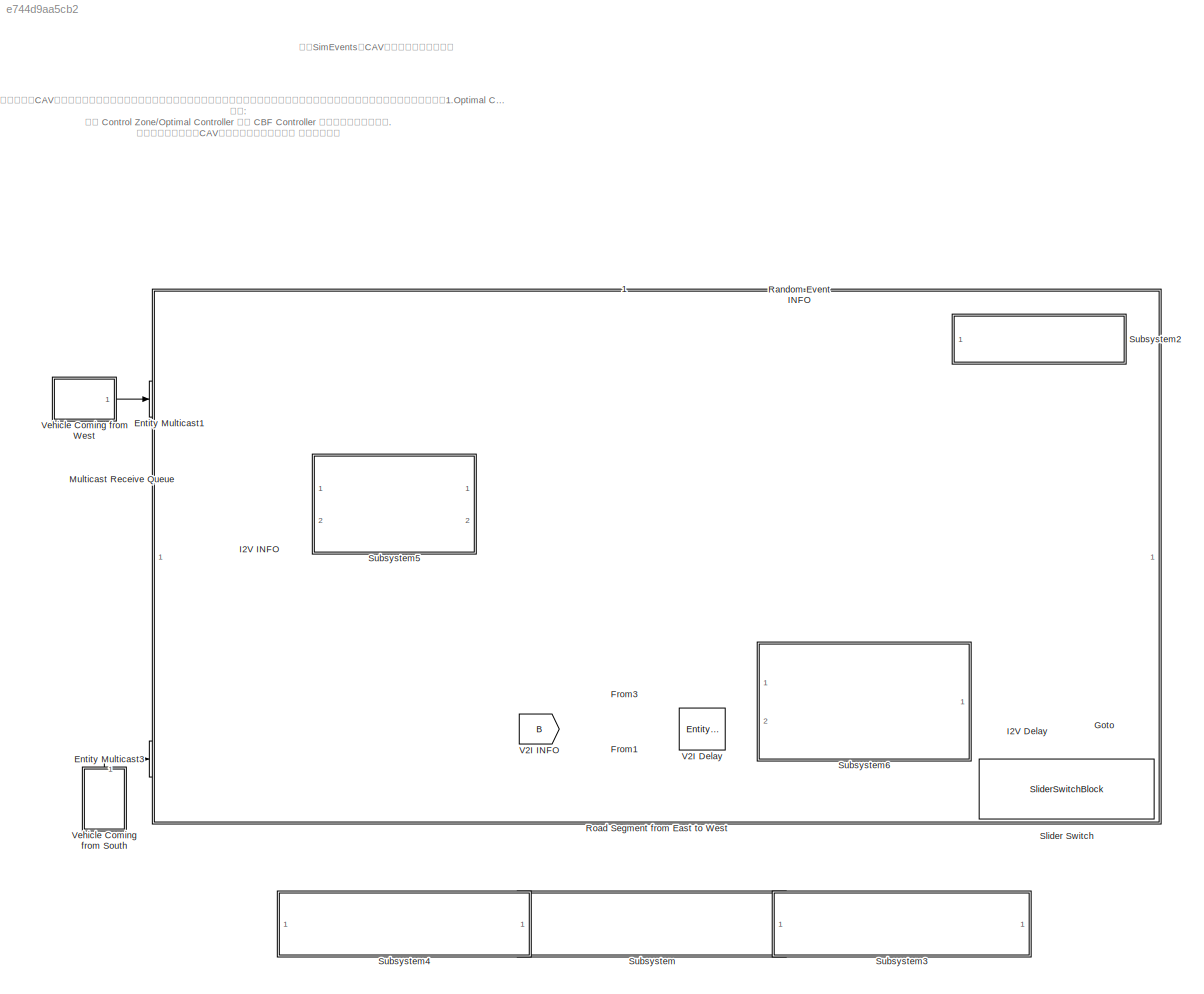
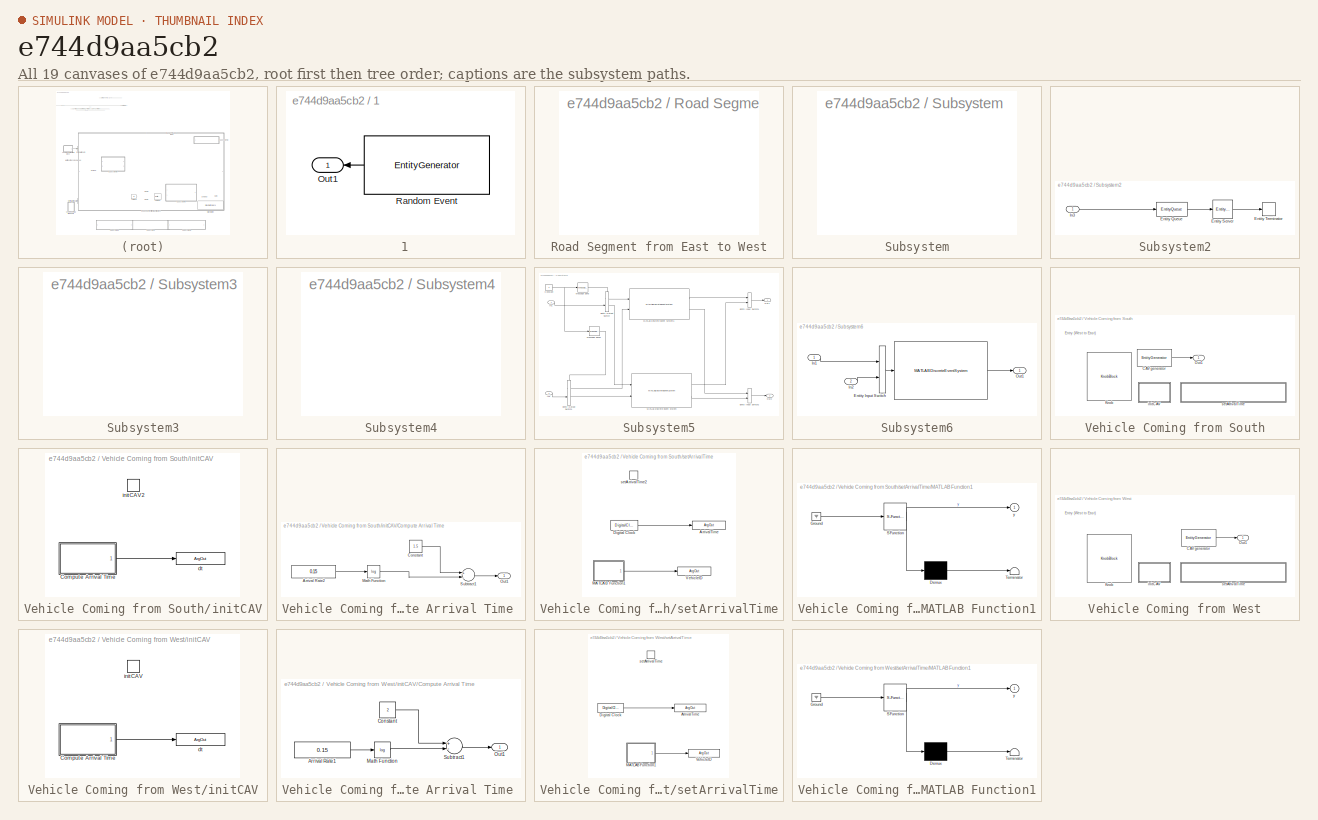
[diagram: thumbnail index - all 19 canvases of the model, root first then tree order]
MODEL slx_e744d9aa5cb2
KIND model
CONFIG AbsTol = auto
CONFIG EnableMultiTasking = off
CONFIG FixedStep = 0.1
CONFIG MaxStep = auto
CONFIG MinStep = auto
CONFIG PreLoadFcn = init_func
CONFIG RelTol = 1e-3
CONFIG SampleTimeConstraint = Unconstrained
CONFIG Solver = VariableStepAuto
CONFIG SolverName = VariableStepAuto
CONFIG StartTime = 0.0
CONFIG StopTime = 30
BLOCK [SubSystem]  1
  Ports = [0, 1]
  RequestExecContextInheritance = off
BLOCK [Outport]  1/Out1
  IconDisplay = Port number
BLOCK [EntityGenerator]  1/Random Event
  AttributeInitialValue = 0
  AttributeName = entity
  EntityPriority = 100
  EntityType = Bus object
  EntityTypeName = INFO
  GenerateEntityAtSimulationStart = off
  IntergenerationTimeAction = dt = 1000;
  OutputPortMap = o3
  OutputPortMessageModes = m
  Ports = [0, 1]
  TimeSource = MATLAB action
BLOCK [EntityMulticast] Entity Multicast1
  InputPortMessageModes = m
  MulticastTag = CAV
BLOCK [EntityMulticast] Entity Multicast3
  InputPortMessageModes = m
  MulticastTag = CAV
BLOCK [From] From1
  GotoTag = B
BLOCK [From] From3
  GotoTag = C
BLOCK [Goto] Goto
BLOCK [EntityServer] I2V Delay
  Capacity = Inf
  InputPortMap = u2
  InputPortMessageModes = m
  OutputPortMap = o9
  OutputPortMessageModes = m
  Ports = [1, 1]
  ServiceTimeValue = 0
BLOCK [From] I2V INFO
BLOCK [EntityQueue] Multicast Receive Queue
  Capacity = 100
  EntityArrivalSource = Multicast
  MulticastTag = CAV
  OutputPortMap = o5
  OutputPortMessageModes = m
  Ports = [0, 1]
BLOCK [Goto] Random Event INFO
  GotoTag = C
BLOCK [SubSystem] Road Segment from East to West
  Ports = []
  RequestExecContextInheritance = off
BLOCK [SliderSwitchBlock] Slider Switch
  LabelPosition = Hide
  WebBlockId = 192
BLOCK [SubSystem] Subsystem
  OpenFcn = edit dynamics.m
  Ports = []
  RequestExecContextInheritance = off
BLOCK [SubSystem] Subsystem2
  Ports = [1]
  RequestExecContextInheritance = off
BLOCK [EntityQueue] Subsystem2/Entity Queue
  InputPortMap = u0
  InputPortMessageModes = m
  OutputPortMap = o5
  OutputPortMessageModes = m
  Ports = [1, 1]
BLOCK [EntityServer] Subsystem2/Entity Server
  Capacity = Inf
  InputPortMap = u2
  InputPortMessageModes = m
  OutputPortMap = o9
  OutputPortMessageModes = m
  Ports = [1, 1]
  ServiceTimeAction = dt = 30 / entity.FinalSpeed;
  ServiceTimeSource = MATLAB action
BLOCK [EntityTerminator] Subsystem2/Entity Terminator
  InputPortMap = u0
  InputPortMessageModes = m
  Ports = [1]
BLOCK [Inport] Subsystem2/In3
  IconDisplay = Port number
BLOCK [SubSystem] Subsystem3
  OpenFcn = edit fuel_consumption.m
  Ports = []
  RequestExecContextInheritance = off
BLOCK [SubSystem] Subsystem4
  OpenFcn = edit acc.m
  Ports = []
  RequestExecContextInheritance = off
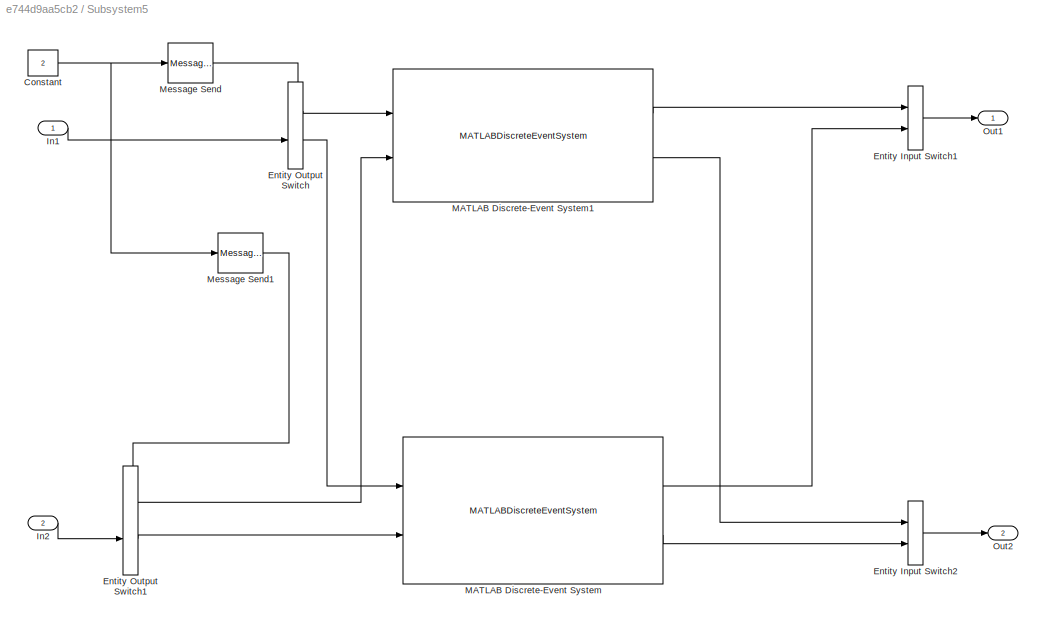
BLOCK [SubSystem] Subsystem5
  Ports = [2, 2]
  RequestExecContextInheritance = off
BLOCK [Constant] Subsystem5/Constant
  SampleTime = -1
  Value = 2
BLOCK [EntityInputSwitch] Subsystem5/Entity Input Switch1
  InputPortMap = u1,u2
  InputPortMessageModes = m,m
  OutputPortMap = o0
  OutputPortMessageModes = m
  Ports = [2, 1]
  SwitchingCriterion = From control port
BLOCK [EntityInputSwitch] Subsystem5/Entity Input Switch2
  InputPortMap = u1,u2
  InputPortMessageModes = m,m
  OutputPortMap = o0
  OutputPortMessageModes = m
  Ports = [2, 1]
  SwitchingCriterion = From control port
BLOCK [EntityOutputSwitch] Subsystem5/Entity Output Switch
  InputPortMap = u0,u1
  InputPortMessageModes = m,m
  OutputPortMap = o0,o1
  OutputPortMessageModes = m,m
  Ports = [2, 2]
  SwitchAttributeName = Attribute1
  SwitchingCriterion = From control port
BLOCK [EntityOutputSwitch] Subsystem5/Entity Output Switch1
  InputPortMap = u0,u1
  InputPortMessageModes = m,m
  OutputPortMap = o0,o1
  OutputPortMessageModes = m,m
  Ports = [2, 2]
  SwitchAttributeName = Attribute1
  SwitchingCriterion = From control port
BLOCK [Inport] Subsystem5/In1
  IconDisplay = Port number
BLOCK [Inport] Subsystem5/In2
  IconDisplay = Port number
  Port = 2
BLOCK [MATLABDiscreteEventSystem] Subsystem5/MATLAB Discrete-Event System
  InputPortMessageModes = m,m
  Length = 400
  MaskDisplay = disp('CBF Controller');\nport_label('input',1,'IN');\nport_label('input',2,'INFO');\nport_label('output',1,'OUT');\nport_label('output',2,'INFO');
  MaskType = CBFController
  OutputPortMessageModes = m,m
  Ports = [2, 2]
  SimulateUsing = Interpreted execution
  System = CBFController
  Umax = 0.4
  Umin = 0.6
  Vd = 30
  Vmax = 30
  Vmin = 0
  capacity = 100
  step = 0.1
BLOCK [MATLABDiscreteEventSystem] Subsystem5/MATLAB Discrete-Event System1
  Description = Coordinator
  InputPortMessageModes = m,m
  L = 400
  MaskDisplay = disp('OPTIMAL CONTROLLER');\nport_label('input',1,'IN');\nport_label('input',2,'INFO');\nport_label('output',1,'OUT');\nport_label('output',2,'INFO');
  MaskType = Controller
  OutputPortMessageModes = m,m
  Ports = [2, 2]
  SimulateUsing = Interpreted execution
  System = Controller
  capacity = 100
  step = 0.1
BLOCK [MessageSend] Subsystem5/Message Send
  InputPortMap = u1
  OutputPortMessageModes = m
  Ports = [1, 1]
BLOCK [MessageSend] Subsystem5/Message Send1
  InputPortMap = u1
  OutputPortMessageModes = m
  Ports = [1, 1]
BLOCK [Outport] Subsystem5/Out1
  IconDisplay = Port number
BLOCK [Outport] Subsystem5/Out2
  IconDisplay = Port number
  Port = 2
BLOCK [SubSystem] Subsystem6
  Ports = [2, 1]
  RequestExecContextInheritance = off
BLOCK [MATLABDiscreteEventSystem] Subsystem6/ 
  InputPortMessageModes = m
  MaskDisplay = disp('COORDINATOR');\nport_label('input',1,'IN');\nport_label('output',1,'OUT');
  MaskType = Coordinator
  OutputPortMessageModes = m
  Ports = [1, 1]
  SimulateUsing = Interpreted execution
  System = Coordinator
  capacity = 100
BLOCK [EntityInputSwitch] Subsystem6/Entity Input Switch
  InputPortMap = u1,u2
  InputPortMessageModes = m,m
  OutputPortMap = o0
  OutputPortMessageModes = m
  Ports = [2, 1]
BLOCK [Inport] Subsystem6/In1
  IconDisplay = Port number
BLOCK [Inport] Subsystem6/In2
  IconDisplay = Port number
  Port = 2
BLOCK [Outport] Subsystem6/Out1
  IconDisplay = Port number
BLOCK [EntityServer] V2I Delay
  Capacity = Inf
  InputPortMap = u2
  InputPortMessageModes = m
  OutputPortMap = o9
  OutputPortMessageModes = m
  Ports = [1, 1]
  ServiceTimeValue = 0.1
BLOCK [Goto] V2I INFO
  GotoTag = B
BLOCK [SubSystem] Vehicle Coming from South
  Ports = [0, 1]
  RequestExecContextInheritance = off
BLOCK [EntityGenerator] Vehicle Coming from South/CAV generator 
  AttributeInitialValue = 0|1|1|1|1|1|1|1|[0 0 0 0]
  AttributeName = ID|Speed|ArrivalTime|FinalSpeed|FinalTime|Position|Destination|Lane|coe
  DialogController = slde.AttributeBlockDialog
  EntityType = Bus object
  EntityTypeName = CAV
  GenerateAction = entity.FinalSpeed = 30;\nentity.distance = 0;\n[entity.ArrivalTime,...\n    entity.ID] = setArrivalTime2();\n%entity.Speed = 9 + 3 * rand();\nentity.Speed = 20;\nentity.TravelTime = 0;\nentity.FuelConsumption = 0;\nentity.Lane = 2;\nentity.Position = 0;\nentity.coe = [0, 0, entity.Speed, ...\n    -entity.Speed * entity.ArrivalTime];\ndest = [1, 3, 4];\nidx = ceil(3 * rand()); \nentity.Destination = 3;%dest(idx)...<+46ch>
  GenerateEntityAtSimulationStart = off
  IntergenerationTimeAction = % dt = 2 * rand();\n%  dt = initCAV2();\nmean = 0.8;%orin 2.7\ndt = 2.8- mean*log(1-rand());\n%dt = 2.8;
  OutputPortMap = o3
  OutputPortMessageModes = m
  Ports = [0, 1]
  TimeSource = MATLAB action
BLOCK [KnobBlock] Vehicle Coming from South/Knob
  ScaleMax = 1
  WebBlockId = 193
BLOCK [Outport] Vehicle Coming from South/Out1
  IconDisplay = Port number
BLOCK [SubSystem] Vehicle Coming from South/initCAV
  Ports = [0, 0, 0, 1]
  RequestExecContextInheritance = off
  TreatAsAtomicUnit = on
BLOCK [SubSystem] Vehicle Coming from South/initCAV/Compute Arrival Time 
  Ports = [0, 1]
  RequestExecContextInheritance = off
BLOCK [Constant] Vehicle Coming from South/initCAV/Compute Arrival Time /Arrival Rate2 
  SampleTime = -1
  Value = 0.15
BLOCK [Constant] Vehicle Coming from South/initCAV/Compute Arrival Time /Constant
  SampleTime = Inf
  Value = 1.5
BLOCK [Math] Vehicle Coming from South/initCAV/Compute Arrival Time /Math Function
  Operator = log
  Ports = [1, 1]
BLOCK [Outport] Vehicle Coming from South/initCAV/Compute Arrival Time /Out1
  IconDisplay = Port number
BLOCK [Sum] Vehicle Coming from South/initCAV/Compute Arrival Time /Subtract1
  InputSameDT = off
  Inputs = +-
  OutDataTypeStr = Inherit: Inherit via internal rule
  Ports = [2, 1]
  SaturateOnIntegerOverflow = off
BLOCK [ArgOut] Vehicle Coming from South/initCAV/dt
  ArgumentName = dt
  DisableCoverage = on
BLOCK [TriggerPort] Vehicle Coming from South/initCAV/initCAV2
  FunctionName = initCAV2
  FunctionVisibility = scoped
  IsSimulinkFunction = on
  Ports = []
  StatesWhenEnabling = held
  TriggerType = function-call
  VariantControl = Variant
BLOCK [SubSystem] Vehicle Coming from South/setArrivalTime
  Ports = [0, 0, 0, 1]
  RequestExecContextInheritance = off
  TreatAsAtomicUnit = on
BLOCK [ArgOut] Vehicle Coming from South/setArrivalTime/ArrivalTime
  ArgumentName = ArrivalTime
  DisableCoverage = on
BLOCK [DigitalClock] Vehicle Coming from South/setArrivalTime/Digital Clock
  SampleTime = -1
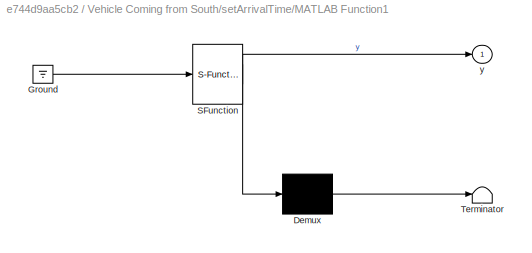
BLOCK [SubSystem] Vehicle Coming from South/setArrivalTime/MATLAB Function1
  ErrorFcn = Stateflow.Translate.translate
  PermitHierarchicalResolution = ExplicitOnly
  Ports = [0, 1]
  RequestExecContextInheritance = off
  SFBlockType = MATLAB Function
  TreatAsAtomicUnit = on
BLOCK [Demux] Vehicle Coming from South/setArrivalTime/MATLAB Function1/ Demux 
  Outputs = 1
  Ports = [1, 1]
BLOCK [Ground] Vehicle Coming from South/setArrivalTime/MATLAB Function1/ Ground 
BLOCK [S-Function] Vehicle Coming from South/setArrivalTime/MATLAB Function1/ SFunction 
  EnableBusSupport = on
  FunctionName = sf_sfun
  PortCounts = [1 2]
  Ports = [1, 2]
  SFcnIsStateOwnerBlock = off
  SFunctionDeploymentMode = off
  Tag = Stateflow S-Function SingleMerging 1
BLOCK [Terminator] Vehicle Coming from South/setArrivalTime/MATLAB Function1/ Terminator 
BLOCK [Outport] Vehicle Coming from South/setArrivalTime/MATLAB Function1/y
  IconDisplay = Port number
BLOCK [ArgOut] Vehicle Coming from South/setArrivalTime/VehicleID
  ArgumentName = VehicleID
  DisableCoverage = on
  Port = 2
BLOCK [TriggerPort] Vehicle Coming from South/setArrivalTime/setArrivalTime2
  FunctionName = setArrivalTime2
  FunctionVisibility = scoped
  IsSimulinkFunction = on
  Ports = []
  StatesWhenEnabling = held
  TriggerType = function-call
  VariantControl = Variant
BLOCK [SubSystem] Vehicle Coming from West
  Ports = [0, 1]
  RequestExecContextInheritance = off
BLOCK [EntityGenerator] Vehicle Coming from West/CAV generator 
  AttributeInitialValue = 0|1|1|1|1|0|1|1|1|[0 0 0 0]
  AttributeName = ID|Speed|ArrivalTime|FinalSpeed|FinalTime|Position|Lane|Destination|Acceleration|coe
  DialogController = slde.AttributeBlockDialog
  EntityType = Bus object
  EntityTypeName = CAV
  GenerateAction = entity.FinalSpeed = 30;\nentity.distance = 0;\n[entity.ArrivalTime,...\n    entity.ID] = setArrivalTime();\n%entity.Speed = 8 + 4 * rand();\nentity.Speed = 20;\nentity.Lane = 1;\nentity.Position = 0;\nentity.TravelTime = 0;\nentity.FuelConsumption = 0;\nentity.coe = [0, 0, entity.Speed,...\n    - entity.Speed * entity.ArrivalTime];\ndest = [2, 3, 4];\nidx = ceil(3 * rand()); \nentity.Destination = 3;%dest(idx);...<+45ch>
  IntergenerationTimeAction = % dt = initCAV();\nmean = 0.2;\ndt = 1.8 -  mean*log(1-rand());\n% dt = 2.8;\n%泊松分布 前面要是不+个数 容易间隔太短\n% arrive_rate = 0.3;\n% minTimeInterval = 1.2;\n% averTimeInterval = 1 / arrive_rate;\n% maxTimeInterval = averTimeInterval * 1.2;\n% dt1 = minTimeInterval - log( rand() ) / arrive_rate;\n% while dt1 > maxTimeInterval\n%     dt1 = minTimeInterval - log( rand() ) / arrive_rate;\n% end\n% dt = dt1;
  OutputPortMap = o3
  OutputPortMessageModes = m
  Ports = [0, 1]
  TimeSource = MATLAB action
BLOCK [KnobBlock] Vehicle Coming from West/Knob
  ScaleMax = 3
  WebBlockId = 194
BLOCK [Outport] Vehicle Coming from West/Out1
  IconDisplay = Port number
BLOCK [SubSystem] Vehicle Coming from West/initCAV
  Ports = [0, 0, 0, 1]
  RequestExecContextInheritance = off
  TreatAsAtomicUnit = on
BLOCK [SubSystem] Vehicle Coming from West/initCAV/Compute Arrival Time 
  Ports = [0, 1]
  RequestExecContextInheritance = off
BLOCK [Constant] Vehicle Coming from West/initCAV/Compute Arrival Time /Arrival Rate1 
  SampleTime = -1
  Value = 0.15
BLOCK [Constant] Vehicle Coming from West/initCAV/Compute Arrival Time /Constant
  SampleTime = Inf
  Value = 2
BLOCK [Math] Vehicle Coming from West/initCAV/Compute Arrival Time /Math Function
  Operator = log
  Ports = [1, 1]
BLOCK [Outport] Vehicle Coming from West/initCAV/Compute Arrival Time /Out1
  IconDisplay = Port number
BLOCK [Sum] Vehicle Coming from West/initCAV/Compute Arrival Time /Subtract1
  InputSameDT = off
  Inputs = +-
  OutDataTypeStr = Inherit: Inherit via internal rule
  Ports = [2, 1]
  SaturateOnIntegerOverflow = off
BLOCK [ArgOut] Vehicle Coming from West/initCAV/dt
  ArgumentName = dt
  DisableCoverage = on
BLOCK [TriggerPort] Vehicle Coming from West/initCAV/initCAV
  FunctionName = initCAV
  FunctionVisibility = scoped
  IsSimulinkFunction = on
  Ports = []
  StatesWhenEnabling = held
  TriggerType = function-call
  VariantControl = Variant
BLOCK [SubSystem] Vehicle Coming from West/setArrivalTime
  Ports = [0, 0, 0, 1]
  RequestExecContextInheritance = off
  TreatAsAtomicUnit = on
BLOCK [ArgOut] Vehicle Coming from West/setArrivalTime/ArrivalTime
  ArgumentName = ArrivalTime
  DisableCoverage = on
BLOCK [DigitalClock] Vehicle Coming from West/setArrivalTime/Digital Clock
  SampleTime = -1
BLOCK [SubSystem] Vehicle Coming from West/setArrivalTime/MATLAB Function1
  ErrorFcn = Stateflow.Translate.translate
  PermitHierarchicalResolution = ExplicitOnly
  Ports = [0, 1]
  RequestExecContextInheritance = off
  SFBlockType = MATLAB Function
  TreatAsAtomicUnit = on
BLOCK [Demux] Vehicle Coming from West/setArrivalTime/MATLAB Function1/ Demux 
  Outputs = 1
  Ports = [1, 1]
BLOCK [Ground] Vehicle Coming from West/setArrivalTime/MATLAB Function1/ Ground 
BLOCK [S-Function] Vehicle Coming from West/setArrivalTime/MATLAB Function1/ SFunction 
  EnableBusSupport = on
  FunctionName = sf_sfun
  PortCounts = [1 2]
  Ports = [1, 2]
  SFcnIsStateOwnerBlock = off
  SFunctionDeploymentMode = off
  Tag = Stateflow S-Function SingleMerging 4
BLOCK [Terminator] Vehicle Coming from West/setArrivalTime/MATLAB Function1/ Terminator 
BLOCK [Outport] Vehicle Coming from West/setArrivalTime/MATLAB Function1/y
  IconDisplay = Port number
BLOCK [ArgOut] Vehicle Coming from West/setArrivalTime/VehicleID
  ArgumentName = ID
  DisableCoverage = on
  Port = 2
BLOCK [TriggerPort] Vehicle Coming from West/setArrivalTime/setArrivalTime
  FunctionName = setArrivalTime
  FunctionVisibility = scoped
  IsSimulinkFunction = on
  Ports = []
  StatesWhenEnabling = held
  TriggerType = function-call
  VariantControl = Variant
ANNOTATION (root): 该框架旨在提升匝道CAV车辆合流过程中的安全与高效，同时考虑了状态约束，控制约束，跟车及合流车辆间距约束。该框架设计并实现了两个控制器：1.Optimal Controller（最优控制器）2.CBF Controller（基于控制障碍函数的控制器） 说明: 点击 Control Zone/Optimal Controller 或者 CBF Controller 可以看到相应的源代码. 点击车辆图片来改变CAV车的初始状态（到达率， 初始速度等）
ANNOTATION (root): 基于SimEvents的CAV车辆匝道合流实时仿真
ANNOTATION Vehicle Coming from South: Entry (West to East)
ANNOTATION Vehicle Coming from West: Entry (West to East)
LINE  1/Random Event:1 ->  1/Out1:1
LINE  1:1 -> Random Event INFO:1
LINE From1:1 -> V2I Delay:1
LINE From3:1 -> Subsystem6:1
LINE I2V Delay:1 -> Goto:1
LINE I2V INFO:1 -> Subsystem5:2
LINE Multicast Receive Queue:1 -> Subsystem5:1
LINE Subsystem2/Entity Queue:1 -> Subsystem2/Entity Server:1
LINE Subsystem2/Entity Server:1 -> Subsystem2/Entity Terminator:1
LINE Subsystem2/In3:1 -> Subsystem2/Entity Queue:1
NET Subsystem5/Constant:1 -> Subsystem5/Message Send1:1, Subsystem5/Message Send:1
LINE Subsystem5/Entity Input Switch1:1 -> Subsystem5/Out1:1
LINE Subsystem5/Entity Input Switch2:1 -> Subsystem5/Out2:1
LINE Subsystem5/Entity Output Switch1:1 -> Subsystem5/MATLAB Discrete-Event System1:2
LINE Subsystem5/Entity Output Switch1:2 -> Subsystem5/MATLAB Discrete-Event System:2
LINE Subsystem5/Entity Output Switch:1 -> Subsystem5/MATLAB Discrete-Event System1:1
LINE Subsystem5/Entity Output Switch:2 -> Subsystem5/MATLAB Discrete-Event System:1
LINE Subsystem5/In1:1 -> Subsystem5/Entity Output Switch:2
LINE Subsystem5/In2:1 -> Subsystem5/Entity Output Switch1:2
LINE Subsystem5/MATLAB Discrete-Event System1:1 -> Subsystem5/Entity Input Switch1:1
LINE Subsystem5/MATLAB Discrete-Event System1:2 -> Subsystem5/Entity Input Switch2:1
LINE Subsystem5/MATLAB Discrete-Event System:1 -> Subsystem5/Entity Input Switch1:2
LINE Subsystem5/MATLAB Discrete-Event System:2 -> Subsystem5/Entity Input Switch2:2
LINE Subsystem5/Message Send1:1 -> Subsystem5/Entity Output Switch1:1
LINE Subsystem5/Message Send:1 -> Subsystem5/Entity Output Switch:1
LINE Subsystem5:1 -> Subsystem2:1
LINE Subsystem5:2 -> V2I INFO:1
LINE Subsystem6/ :1 -> Subsystem6/Out1:1
LINE Subsystem6/Entity Input Switch:1 -> Subsystem6/ :1
LINE Subsystem6/In1:1 -> Subsystem6/Entity Input Switch:1
LINE Subsystem6/In2:1 -> Subsystem6/Entity Input Switch:2
LINE Subsystem6:1 -> I2V Delay:1
LINE V2I Delay:1 -> Subsystem6:2
LINE Vehicle Coming from South/CAV generator :1 -> Vehicle Coming from South/Out1:1
LINE Vehicle Coming from South/initCAV/Compute Arrival Time /Arrival Rate2 :1 -> Vehicle Coming from South/initCAV/Compute Arrival Time /Math Function:1
LINE Vehicle Coming from South/initCAV/Compute Arrival Time /Constant:1 -> Vehicle Coming from South/initCAV/Compute Arrival Time /Subtract1:1
LINE Vehicle Coming from South/initCAV/Compute Arrival Time /Math Function:1 -> Vehicle Coming from South/initCAV/Compute Arrival Time /Subtract1:2
LINE Vehicle Coming from South/initCAV/Compute Arrival Time /Subtract1:1 -> Vehicle Coming from South/initCAV/Compute Arrival Time /Out1:1
LINE Vehicle Coming from South/initCAV/Compute Arrival Time :1 -> Vehicle Coming from South/initCAV/dt:1
LINE Vehicle Coming from South/setArrivalTime/Digital Clock:1 -> Vehicle Coming from South/setArrivalTime/ArrivalTime:1
LINE Vehicle Coming from South/setArrivalTime/MATLAB Function1:1 -> Vehicle Coming from South/setArrivalTime/VehicleID:1
LINE Vehicle Coming from South:1 -> Entity Multicast3:1
LINE Vehicle Coming from West/CAV generator :1 -> Vehicle Coming from West/Out1:1
LINE Vehicle Coming from West/initCAV/Compute Arrival Time /Arrival Rate1 :1 -> Vehicle Coming from West/initCAV/Compute Arrival Time /Math Function:1
LINE Vehicle Coming from West/initCAV/Compute Arrival Time /Constant:1 -> Vehicle Coming from West/initCAV/Compute Arrival Time /Subtract1:1
LINE Vehicle Coming from West/initCAV/Compute Arrival Time /Math Function:1 -> Vehicle Coming from West/initCAV/Compute Arrival Time /Subtract1:2
LINE Vehicle Coming from West/initCAV/Compute Arrival Time /Subtract1:1 -> Vehicle Coming from West/initCAV/Compute Arrival Time /Out1:1
LINE Vehicle Coming from West/initCAV/Compute Arrival Time :1 -> Vehicle Coming from West/initCAV/dt:1
LINE Vehicle Coming from West/setArrivalTime/Digital Clock:1 -> Vehicle Coming from West/setArrivalTime/ArrivalTime:1
LINE Vehicle Coming from West/setArrivalTime/MATLAB Function1:1 -> Vehicle Coming from West/setArrivalTime/VehicleID:1
LINE Vehicle Coming from West:1 -> Entity Multicast1:1
note: NET lines group one-source signal fan-out (src -> all destinations, sorted); 1:1 wires keep LINE
CHART Vehicle Coming from South/setArrivalTime/MATLAB Function1 states=1 transitions=1
  STATE_LABEL 'eML_blk_kernel()'
  STATE_LABEL 'SCRIPT:\nfunction y = getID\nglobal FF\n\nFF = FF + 1;\ny = FF;'
CHART Vehicle Coming from West/setArrivalTime/MATLAB Function1 states=1 transitions=1
  STATE_LABEL 'eML_blk_kernel()'
  STATE_LABEL 'SCRIPT:\nfunction y = getID()\nglobal FF\n\nFF = FF + 1;\ny = FF;'
